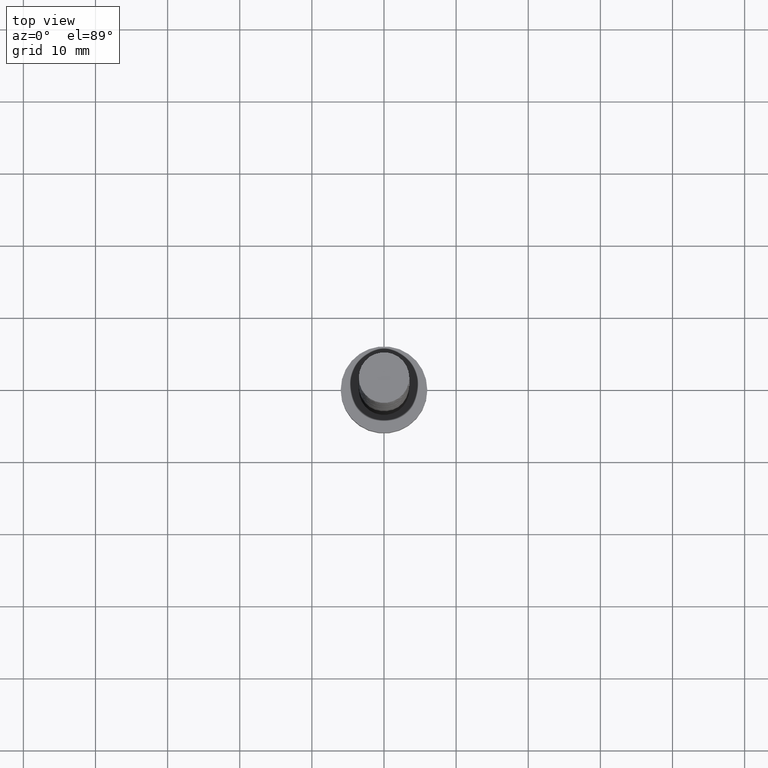
[diagram: clean part render]
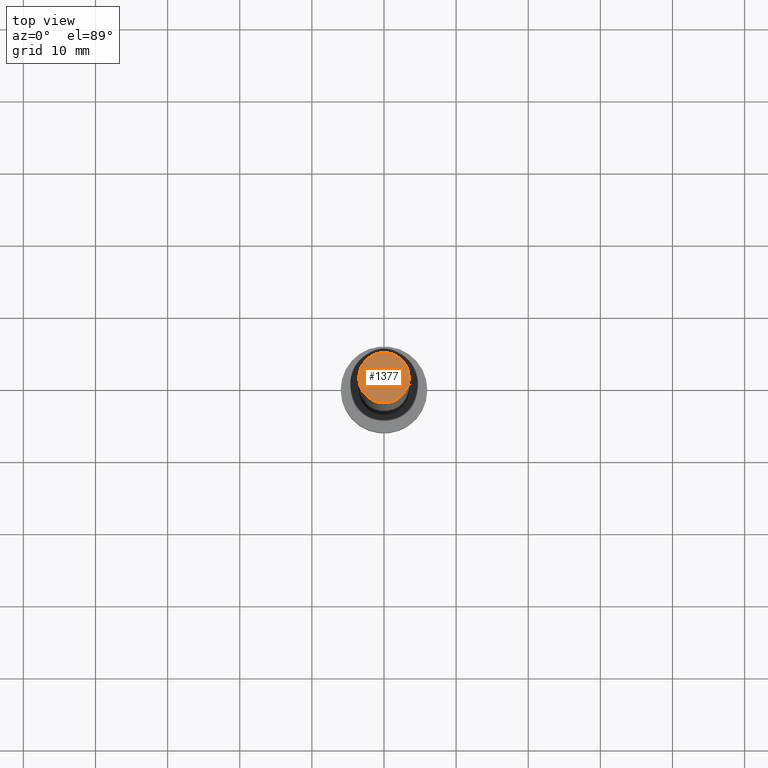
[diagram: same view with one face highlighted and labeled with its STEP entity id]
A machine part, top view. The second image highlights one B-rep face of the part: STEP entity #1377.
In plain terms, the highlighted planar face has unit normal (0, 0, 1).
Its self-contained STEP definition (entity closure, byte-faithful):
#58 = EDGE_CURVE ( 'NONE', #591, #572, #972, .T. ) ;
#99 = PLANE ( 'NONE',  #255 ) ;
#152 = ORIENTED_EDGE ( 'NONE', *, *, #1286, .T. ) ;
#213 = DIRECTION ( 'NONE',  ( 1.000000000000000000, 0.000000000000000000, -0.000000000000000000 ) ) ;
#217 = EDGE_LOOP ( 'NONE', ( #152, #1473 ) ) ;
#255 = AXIS2_PLACEMENT_3D ( 'NONE', #1478, #900, #213 ) ;
#377 = CARTESIAN_POINT ( 'NONE',  ( -3.500000000000000000, 0.000000000000000000, 100.0000000000000000 ) ) ;
#408 = DIRECTION ( 'NONE',  ( 0.000000000000000000, 0.000000000000000000, 1.000000000000000000 ) ) ;
#572 = VERTEX_POINT ( 'NONE', #377 ) ;
#591 = VERTEX_POINT ( 'NONE', #1433 ) ;
#664 = CARTESIAN_POINT ( 'NONE',  ( 0.000000000000000000, 0.000000000000000000, 100.0000000000000000 ) ) ;
#682 = FACE_OUTER_BOUND ( 'NONE', #217, .T. ) ;
#841 = CIRCLE ( 'NONE', #990, 3.500000000000000000 ) ;
#900 = DIRECTION ( 'NONE',  ( 0.000000000000000000, 0.000000000000000000, 1.000000000000000000 ) ) ;
#919 = AXIS2_PLACEMENT_3D ( 'NONE', #664, #408, #1104 ) ;
#971 = CARTESIAN_POINT ( 'NONE',  ( 0.000000000000000000, 0.000000000000000000, 100.0000000000000000 ) ) ;
#972 = CIRCLE ( 'NONE', #919, 3.500000000000000000 ) ;
#990 = AXIS2_PLACEMENT_3D ( 'NONE', #971, #1332, #1221 ) ;
#1104 = DIRECTION ( 'NONE',  ( 1.000000000000000000, 0.000000000000000000, 0.000000000000000000 ) ) ;
#1221 = DIRECTION ( 'NONE',  ( 1.000000000000000000, 0.000000000000000000, 0.000000000000000000 ) ) ;
#1286 = EDGE_CURVE ( 'NONE', #572, #591, #841, .T. ) ;
#1332 = DIRECTION ( 'NONE',  ( 0.000000000000000000, 0.000000000000000000, 1.000000000000000000 ) ) ;
#1377 = ADVANCED_FACE ( 'NONE', ( #682 ), #99, .T. ) ;
#1433 = CARTESIAN_POINT ( 'NONE',  ( 3.500000000000000000, 4.286263797015736595E-16, 100.0000000000000000 ) ) ;
#1473 = ORIENTED_EDGE ( 'NONE', *, *, #58, .T. ) ;
#1478 = CARTESIAN_POINT ( 'NONE',  ( 0.000000000000000000, 0.000000000000000000, 100.0000000000000000 ) ) ;